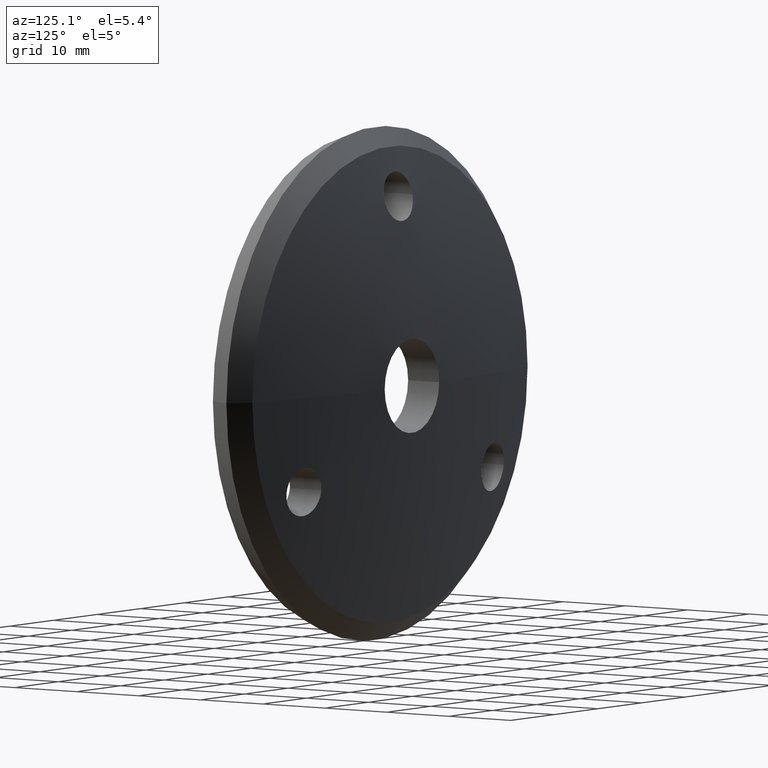
[diagram: clean part render]
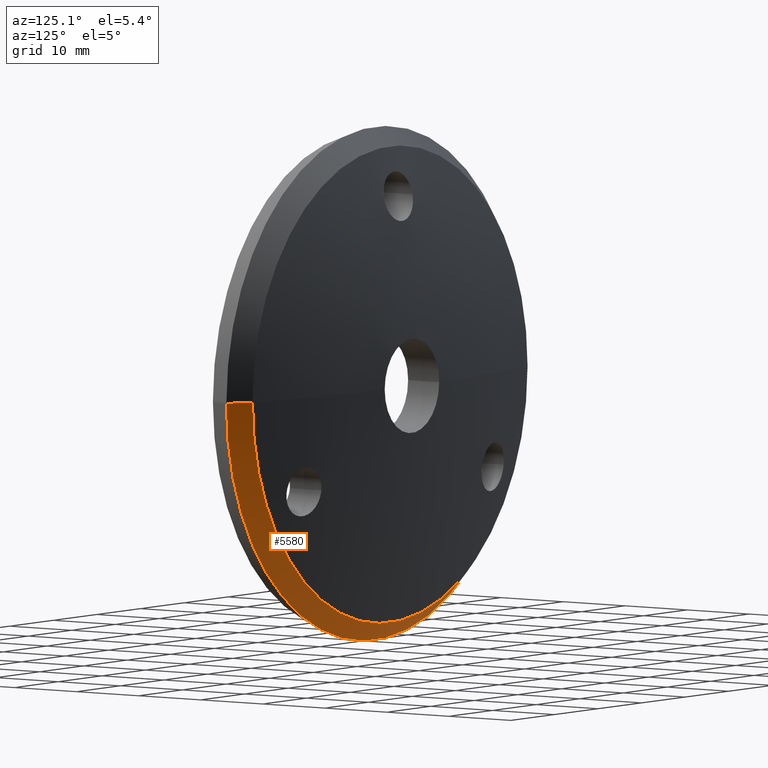
[diagram: same view with one face highlighted and labeled with its STEP entity id]
A machine part, auxiliary view. The second image highlights one B-rep face of the part: STEP entity #5580.
In plain terms, the highlighted conical surface has half-angle 44.713 deg.
Its self-contained STEP definition (entity closure, byte-faithful):
#1 = DIRECTION ( 'NONE',  ( 0.7035575773262883192, -0.7106382591633831902, 0.000000000000000000 ) ) ;
#51 = LINE ( 'NONE', #6106, #12648 ) ;
#70 = CARTESIAN_POINT ( 'NONE',  ( 34.00000000000002842, -1.151432000829118785, 4.163799117101004504E-15 ) ) ;
#504 = ORIENTED_EDGE ( 'NONE', *, *, #5369, .T. ) ;
#946 = EDGE_LOOP ( 'NONE', ( #2518, #9919, #10391, #504 ) ) ;
#2265 = VECTOR ( 'NONE', #5337, 1000.000000000000000 ) ;
#2461 = FACE_OUTER_BOUND ( 'NONE', #946, .T. ) ;
#2518 = ORIENTED_EDGE ( 'NONE', *, *, #2918, .F. ) ;
#2756 = CIRCLE ( 'NONE', #3289, 34.00000000000002842 ) ;
#2918 = EDGE_CURVE ( 'NONE', #12534, #8467, #8303, .T. ) ;
#3289 = AXIS2_PLACEMENT_3D ( 'NONE', #5037, #6143, #11314 ) ;
#3822 = AXIS2_PLACEMENT_3D ( 'NONE', #11350, #13227, #9148 ) ;
#4166 = VERTEX_POINT ( 'NONE', #4898 ) ;
#4394 = CARTESIAN_POINT ( 'NONE',  ( -34.00000000000002842, -1.151432000829118785, 4.163799117101004504E-15 ) ) ;
#4662 = AXIS2_PLACEMENT_3D ( 'NONE', #8729, #11754, #6677 ) ;
#4708 = VERTEX_POINT ( 'NONE', #70 ) ;
#4898 = CARTESIAN_POINT ( 'NONE',  ( 31.55000000000005045, 1.323225072109828426, 0.000000000000000000 ) ) ;
#5037 = CARTESIAN_POINT ( 'NONE',  ( 2.157323450251809556E-19, -1.151432000829118785, 0.000000000000000000 ) ) ;
#5184 = CARTESIAN_POINT ( 'NONE',  ( -34.00000000000002842, -1.151432000829118785, 0.000000000000000000 ) ) ;
#5337 = DIRECTION ( 'NONE',  ( -0.7035575773262883192, -0.7106382591633831902, 8.616095350885053837E-17 ) ) ;
#5369 = EDGE_CURVE ( 'NONE', #4708, #8467, #2756, .T. ) ;
#5580 = ADVANCED_FACE ( 'NONE', ( #2461 ), #8666, .T. ) ;
#6106 = CARTESIAN_POINT ( 'NONE',  ( 34.00000000000002842, -1.151432000829118785, 0.000000000000000000 ) ) ;
#6143 = DIRECTION ( 'NONE',  ( -1.873600393855974325E-19, 1.000000000000000000, -0.000000000000000000 ) ) ;
#6677 = DIRECTION ( 'NONE',  ( 1.000000000000000000, 0.000000000000000000, 0.000000000000000000 ) ) ;
#6974 = CARTESIAN_POINT ( 'NONE',  ( -31.55000000000002203, 1.323225072109828426, -3.863760651309905284E-15 ) ) ;
#8080 = EDGE_CURVE ( 'NONE', #4166, #12534, #9127, .T. ) ;
#8303 = LINE ( 'NONE', #4394, #2265 ) ;
#8467 = VERTEX_POINT ( 'NONE', #5184 ) ;
#8666 = CONICAL_SURFACE ( 'NONE', #4662, 34.00000000000002842, 0.7803913443363523772 ) ;
#8729 = CARTESIAN_POINT ( 'NONE',  ( 2.157323450251809556E-19, -1.151432000829118785, 0.000000000000000000 ) ) ;
#8774 = EDGE_CURVE ( 'NONE', #4166, #4708, #51, .T. ) ;
#9127 = CIRCLE ( 'NONE', #3822, 31.55000000000002913 ) ;
#9148 = DIRECTION ( 'NONE',  ( -1.000000000000000000, 0.000000000000000000, 0.000000000000000000 ) ) ;
#9919 = ORIENTED_EDGE ( 'NONE', *, *, #8080, .F. ) ;
#10391 = ORIENTED_EDGE ( 'NONE', *, *, #8774, .T. ) ;
#11314 = DIRECTION ( 'NONE',  ( -1.000000000000000000, 0.000000000000000000, 0.000000000000000000 ) ) ;
#11350 = CARTESIAN_POINT ( 'NONE',  ( -2.479195016265073111E-19, 1.323225072109827538, 0.000000000000000000 ) ) ;
#11754 = DIRECTION ( 'NONE',  ( 1.873600393855974325E-19, -1.000000000000000000, 0.000000000000000000 ) ) ;
#12534 = VERTEX_POINT ( 'NONE', #6974 ) ;
#12648 = VECTOR ( 'NONE', #1, 1000.000000000000000 ) ;
#13227 = DIRECTION ( 'NONE',  ( -1.873600393855974325E-19, 1.000000000000000000, -0.000000000000000000 ) ) ;